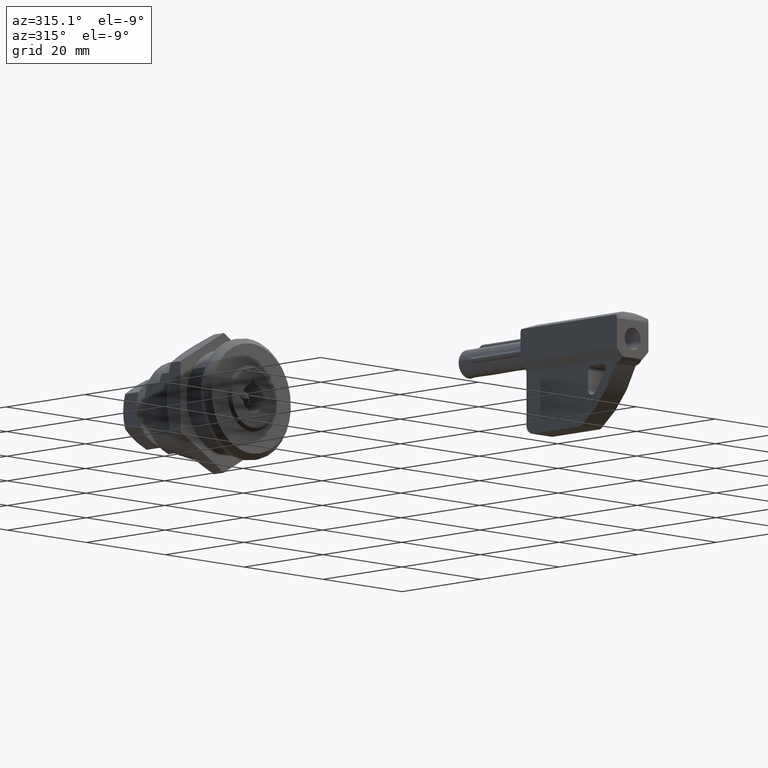
[diagram: clean part render]
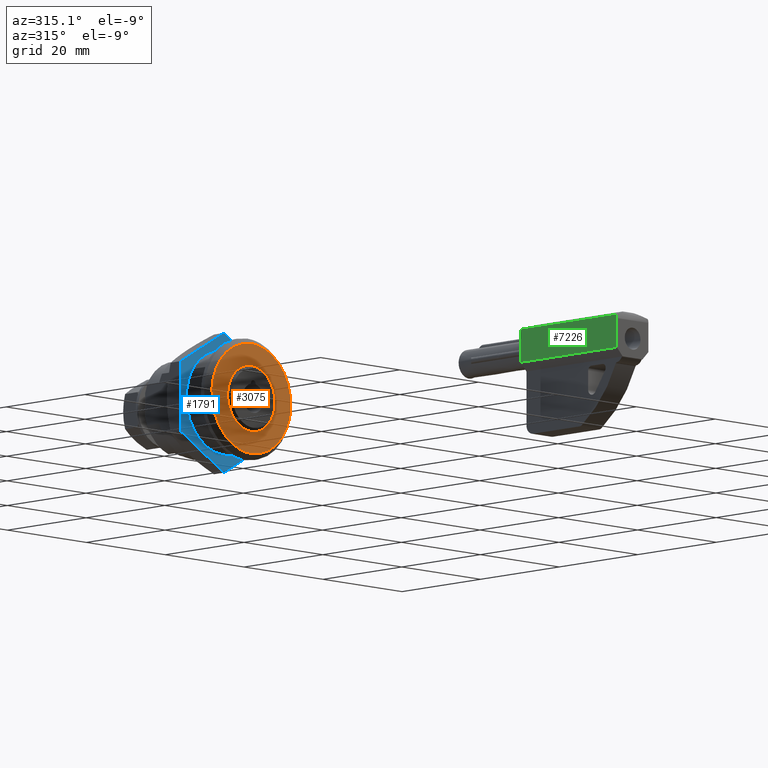
[diagram: same view with three faces highlighted in distinct colors, each labeled with its STEP entity id]
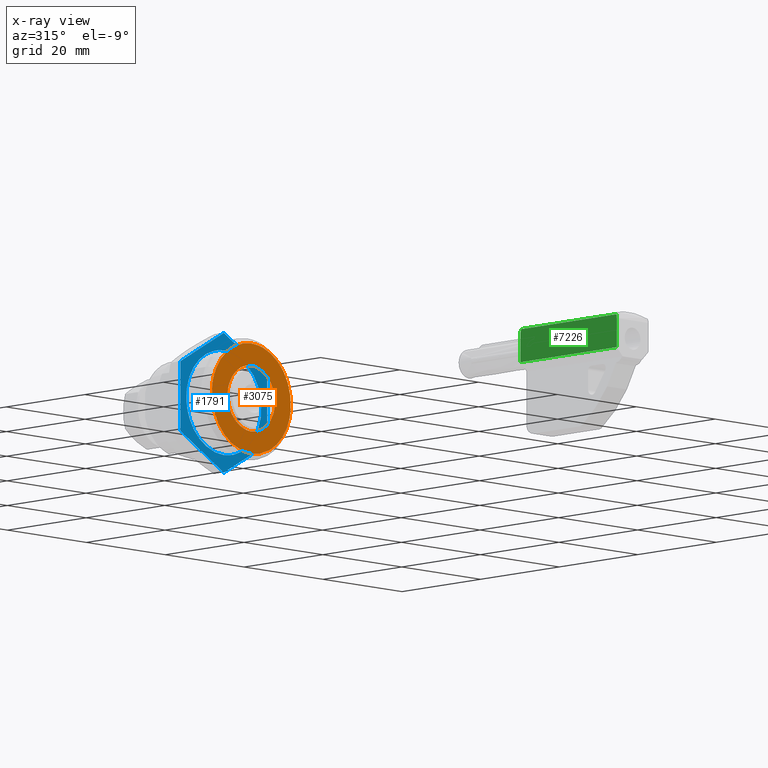
[diagram: x-ray of the same camera — body ghosted, the three highlighted faces saturated]
A machine part, auxiliary view with three faces highlighted in distinct colors.
The next image is the same camera in x-ray (body ghosted, the three faces saturated) — at least one of them is partly hidden behind the body in this view.
Their STEP definitions:

[orange] entity #3075 — the highlighted face is a freeform B-spline surface patch.
#2896=CARTESIAN_POINT('',(5.981504002470306,-1.999999999861463,-0.470754575578729));
#2897=VERTEX_POINT('',#2896);
#2903=CARTESIAN_POINT('',(-1.224606E-016,-2.0,6.000000000000139));
#2904=VERTEX_POINT('',#2903);
#2905=CARTESIAN_POINT('',(5.981504002470306,-1.999999999861463,-0.470754575578729));
#2906=CARTESIAN_POINT('',(6.000000000162861,-1.999999999863980,-0.235740642660914));
#2907=CARTESIAN_POINT('',(6.000000000159605,-1.999999999866701,-1.255163E-011));
#2908=CARTESIAN_POINT('',(6.000000000076740,-1.999999999935970,5.999999999994111));
#2909=CARTESIAN_POINT('',(-1.224606E-016,-2.0,6.000000000000139));
#2917=(BOUNDED_CURVE()B_SPLINE_CURVE(2,(#2905,#2906,#2907,#2908,#2909),.UNSPECIFIED.,.F.,.U.)B_SPLINE_CURVE_WITH_KNOTS((3,2,3),(0.736331300598416,0.750000000000000,1.0),.UNSPECIFIED.)CURVE()GEOMETRIC_REPRESENTATION_ITEM()RATIONAL_B_SPLINE_CURVE((0.969723356100128,0.983986122541106,1.0,0.707106781186548,1.0))REPRESENTATION_ITEM(''));
#2918=EDGE_CURVE('',#2897,#2904,#2917,.T.);
#2920=CARTESIAN_POINT('',(-5.981504002470306,-1.999999999861462,0.470754575578728));
#2921=VERTEX_POINT('',#2920);
#2922=CARTESIAN_POINT('',(-1.224606E-016,-2.0,6.000000000000139));
#2923=CARTESIAN_POINT('',(-5.546342948917396,-1.999999999930731,6.000000000006661));
#2924=CARTESIAN_POINT('',(-5.981504002470306,-1.999999999861462,0.470754575578728));
#2932=(BOUNDED_CURVE()B_SPLINE_CURVE(2,(#2922,#2923,#2924),.UNSPECIFIED.,.F.,.U.)B_SPLINE_CURVE_WITH_KNOTS((3,3),(0.0,0.236331300598416),.UNSPECIFIED.)CURVE()GEOMETRIC_REPRESENTATION_ITEM()RATIONAL_B_SPLINE_CURVE((1.0,0.723120658645441,0.969723356100128))REPRESENTATION_ITEM(''));
#2933=EDGE_CURVE('',#2904,#2921,#2932,.T.);
#2963=CARTESIAN_POINT('',(-1.224606E-016,-2.0,-6.000000000000139));
#2964=VERTEX_POINT('',#2963);
#2965=CARTESIAN_POINT('',(-5.981504002470306,-1.999999999861462,0.470754575578728));
#2966=CARTESIAN_POINT('',(-6.000000000162861,-1.999999999863978,0.235740642660913));
#2967=CARTESIAN_POINT('',(-6.000000000159605,-1.999999999866699,1.255008E-011));
#2968=CARTESIAN_POINT('',(-6.000000000076740,-1.999999999935969,-5.999999999994112));
#2969=CARTESIAN_POINT('',(-1.224606E-016,-2.0,-6.000000000000139));
#2977=(BOUNDED_CURVE()B_SPLINE_CURVE(2,(#2965,#2966,#2967,#2968,#2969),.UNSPECIFIED.,.F.,.U.)B_SPLINE_CURVE_WITH_KNOTS((3,2,3),(0.236331300598416,0.250000000000000,0.500000000000000),.UNSPECIFIED.)CURVE()GEOMETRIC_REPRESENTATION_ITEM()RATIONAL_B_SPLINE_CURVE((0.969723356100128,0.983986122541106,1.0,0.707106781186548,1.0))REPRESENTATION_ITEM(''));
#2978=EDGE_CURVE('',#2921,#2964,#2977,.T.);
#2980=CARTESIAN_POINT('',(-1.224606E-016,-2.0,-6.000000000000139));
#2981=CARTESIAN_POINT('',(5.546342948917396,-1.999999999930733,-6.000000000006661));
#2982=CARTESIAN_POINT('',(5.981504002470306,-1.999999999861463,-0.470754575578729));
#2990=(BOUNDED_CURVE()B_SPLINE_CURVE(2,(#2980,#2981,#2982),.UNSPECIFIED.,.F.,.U.)B_SPLINE_CURVE_WITH_KNOTS((3,3),(0.500000000000000,0.736331300598416),.UNSPECIFIED.)CURVE()GEOMETRIC_REPRESENTATION_ITEM()RATIONAL_B_SPLINE_CURVE((1.0,0.723120658645441,0.969723356100128))REPRESENTATION_ITEM(''));
#2991=EDGE_CURVE('',#2964,#2897,#2990,.T.);
#2998=CARTESIAN_POINT('',(10.995947715013941,-2.000000000000001,10.998999961236120));
#2999=CARTESIAN_POINT('',(10.995947715013941,-2.000000000000001,-10.999000497677921));
#3000=CARTESIAN_POINT('',(-10.995948072641809,-1.999999999999999,10.998999961236120));
#3001=CARTESIAN_POINT('',(-10.995948072641809,-1.999999999999999,-10.999000497677921));
#3002=B_SPLINE_SURFACE_WITH_KNOTS('',1,1,((#2998,#3000),(#2999,#3001)),.UNSPECIFIED.,.F.,.F.,.U.,(2,2),(2,2),(0.0,21.998000458914039),(0.0,21.991895787655750),.UNSPECIFIED.);
#3003=CARTESIAN_POINT('',(-1.224606E-016,-2.0,10.0));
#3004=VERTEX_POINT('',#3003);
#3005=CARTESIAN_POINT('',(-9.969173337337445,-1.999999999984638,0.784590957395488));
#3006=VERTEX_POINT('',#3005);
#3007=CARTESIAN_POINT('',(-1.224606E-016,-2.0,10.0));
#3008=CARTESIAN_POINT('',(-9.243904916481970,-1.999999999992318,10.000000000000602));
#3009=CARTESIAN_POINT('',(-9.969173337337445,-1.999999999984639,0.784590957395488));
#3017=(BOUNDED_CURVE()B_SPLINE_CURVE(2,(#3007,#3008,#3009),.UNSPECIFIED.,.F.,.U.)B_SPLINE_CURVE_WITH_KNOTS((3,3),(0.0,0.236331300630775),.UNSPECIFIED.)CURVE()GEOMETRIC_REPRESENTATION_ITEM()RATIONAL_B_SPLINE_CURVE((1.0,0.723120658607530,0.969723356167659))REPRESENTATION_ITEM(''));
#3018=EDGE_CURVE('',#3004,#3006,#3017,.T.);
#3019=ORIENTED_EDGE('',*,*,#3018,.T.);
#3020=CARTESIAN_POINT('',(-1.224606E-016,-2.0,-10.0));
#3021=VERTEX_POINT('',#3020);
#3022=CARTESIAN_POINT('',(-9.969173337337445,-1.999999999984639,0.784590957395488));
#3023=CARTESIAN_POINT('',(-10.000000000015005,-1.999999999984917,0.392901070136064));
#3024=CARTESIAN_POINT('',(-10.000000000014699,-1.999999999985219,1.157343E-012));
#3025=CARTESIAN_POINT('',(-10.000000000007063,-1.999999999992899,-9.999999999999444));
#3026=CARTESIAN_POINT('',(-1.224606E-016,-2.0,-10.0));
#3034=(BOUNDED_CURVE()B_SPLINE_CURVE(2,(#3022,#3023,#3024,#3025,#3026),.UNSPECIFIED.,.F.,.U.)B_SPLINE_CURVE_WITH_KNOTS((3,2,3),(0.236331300630775,0.250000000000000,0.500000000000000),.UNSPECIFIED.)CURVE()GEOMETRIC_REPRESENTATION_ITEM()RATIONAL_B_SPLINE_CURVE((0.969723356167659,0.983986122579017,1.0,0.707106781186548,1.0))REPRESENTATION_ITEM(''));
#3035=EDGE_CURVE('',#3006,#3021,#3034,.T.);
#3036=ORIENTED_EDGE('',*,*,#3035,.T.);
#3037=CARTESIAN_POINT('',(9.969173337337448,-1.999999999984639,-0.784590957395489));
#3038=VERTEX_POINT('',#3037);
#3039=CARTESIAN_POINT('',(-1.224606E-016,-2.0,-10.0));
#3040=CARTESIAN_POINT('',(9.243904916481970,-1.999999999992320,-10.000000000000600));
#3041=CARTESIAN_POINT('',(9.969173337337448,-1.999999999984640,-0.784590957395489));
#3049=(BOUNDED_CURVE()B_SPLINE_CURVE(2,(#3039,#3040,#3041),.UNSPECIFIED.,.F.,.U.)B_SPLINE_CURVE_WITH_KNOTS((3,3),(0.500000000000000,0.736331300630775),.UNSPECIFIED.)CURVE()GEOMETRIC_REPRESENTATION_ITEM()RATIONAL_B_SPLINE_CURVE((1.0,0.723120658607530,0.969723356167659))REPRESENTATION_ITEM(''));
#3050=EDGE_CURVE('',#3021,#3038,#3049,.T.);
#3051=ORIENTED_EDGE('',*,*,#3050,.T.);
#3052=CARTESIAN_POINT('',(9.969173337337448,-1.999999999984640,-0.784590957395489));
#3053=CARTESIAN_POINT('',(10.000000000015007,-1.999999999984918,-0.392901070136064));
#3054=CARTESIAN_POINT('',(10.000000000014710,-1.999999999985220,-1.156168E-012));
#3055=CARTESIAN_POINT('',(10.000000000007066,-1.999999999992900,9.999999999999444));
#3056=CARTESIAN_POINT('',(-1.224606E-016,-2.0,10.0));
#3064=(BOUNDED_CURVE()B_SPLINE_CURVE(2,(#3052,#3053,#3054,#3055,#3056),.UNSPECIFIED.,.F.,.U.)B_SPLINE_CURVE_WITH_KNOTS((3,2,3),(0.736331300630775,0.750000000000000,1.0),.UNSPECIFIED.)CURVE()GEOMETRIC_REPRESENTATION_ITEM()RATIONAL_B_SPLINE_CURVE((0.969723356167659,0.983986122579017,1.0,0.707106781186548,1.0))REPRESENTATION_ITEM(''));
#3065=EDGE_CURVE('',#3038,#3004,#3064,.T.);
#3066=ORIENTED_EDGE('',*,*,#3065,.T.);
#3067=EDGE_LOOP('',(#3019,#3036,#3051,#3066));
#3068=FACE_OUTER_BOUND('',#3067,.T.);
#3069=ORIENTED_EDGE('',*,*,#2991,.F.);
#3070=ORIENTED_EDGE('',*,*,#2978,.F.);
#3071=ORIENTED_EDGE('',*,*,#2933,.F.);
#3072=ORIENTED_EDGE('',*,*,#2918,.F.);
#3073=EDGE_LOOP('',(#3069,#3070,#3071,#3072));
#3074=FACE_BOUND('',#3073,.T.);
#3075=ADVANCED_FACE('',(#3068,#3074),#3002,.F.);

[blue] entity #1791 — the highlighted face is a freeform B-spline surface patch.
#1632=CARTESIAN_POINT('',(3.061516E-016,5.0,9.500000000000128));
#1633=VERTEX_POINT('',#1632);
#1634=CARTESIAN_POINT('',(9.470714670454422,5.0,0.745361409545433));
#1635=VERTEX_POINT('',#1634);
#1636=CARTESIAN_POINT('',(3.061516E-016,5.0,9.500000000000128));
#1637=CARTESIAN_POINT('',(8.781709670631329,4.999999999999999,9.500000000000128));
#1638=CARTESIAN_POINT('',(9.470714670454422,4.999999999999993,0.745361409545433));
#1646=(BOUNDED_CURVE()B_SPLINE_CURVE(2,(#1636,#1637,#1638),.UNSPECIFIED.,.F.,.U.)B_SPLINE_CURVE_WITH_KNOTS((3,3),(0.0,0.236331300630400),.UNSPECIFIED.)CURVE()GEOMETRIC_REPRESENTATION_ITEM()RATIONAL_B_SPLINE_CURVE((1.0,0.723120658607970,0.969723356166875))REPRESENTATION_ITEM(''));
#1647=EDGE_CURVE('',#1633,#1635,#1646,.T.);
#1649=CARTESIAN_POINT('',(-9.470714670454422,5.0,-0.745361409545178));
#1650=VERTEX_POINT('',#1649);
#1651=CARTESIAN_POINT('',(-9.470714670454422,4.999999999999993,-0.745361409545177));
#1652=CARTESIAN_POINT('',(-9.500000000000000,5.000000000000001,-0.373256016638426));
#1653=CARTESIAN_POINT('',(-9.500000000000000,5.0,1.278977E-013));
#1654=CARTESIAN_POINT('',(-9.500000000000000,5.000000000000001,9.500000000000128));
#1655=CARTESIAN_POINT('',(3.061516E-016,5.0,9.500000000000128));
#1663=(BOUNDED_CURVE()B_SPLINE_CURVE(2,(#1651,#1652,#1653,#1654,#1655),.UNSPECIFIED.,.F.,.U.)B_SPLINE_CURVE_WITH_KNOTS((3,2,3),(0.736331300630400,0.750000000000000,1.0),.UNSPECIFIED.)CURVE()GEOMETRIC_REPRESENTATION_ITEM()RATIONAL_B_SPLINE_CURVE((0.969723356166875,0.983986122578578,1.0,0.707106781186548,1.0))REPRESENTATION_ITEM(''));
#1664=EDGE_CURVE('',#1650,#1633,#1663,.T.);
#1699=CARTESIAN_POINT('',(3.061516E-016,5.0,-9.499999999999872));
#1700=VERTEX_POINT('',#1699);
#1701=CARTESIAN_POINT('',(9.470714670454422,4.999999999999993,0.745361409545433));
#1702=CARTESIAN_POINT('',(9.500000000000000,5.000000000000001,0.373256016638682));
#1703=CARTESIAN_POINT('',(9.500000000000000,5.0,1.278977E-013));
#1704=CARTESIAN_POINT('',(9.500000000000000,5.000000000000001,-9.499999999999872));
#1705=CARTESIAN_POINT('',(3.061516E-016,5.0,-9.499999999999872));
#1713=(BOUNDED_CURVE()B_SPLINE_CURVE(2,(#1701,#1702,#1703,#1704,#1705),.UNSPECIFIED.,.F.,.U.)B_SPLINE_CURVE_WITH_KNOTS((3,2,3),(0.236331300630400,0.250000000000000,0.500000000000000),.UNSPECIFIED.)CURVE()GEOMETRIC_REPRESENTATION_ITEM()RATIONAL_B_SPLINE_CURVE((0.969723356166875,0.983986122578578,1.0,0.707106781186548,1.0))REPRESENTATION_ITEM(''));
#1714=EDGE_CURVE('',#1635,#1700,#1713,.T.);
#1720=CARTESIAN_POINT('',(3.061516E-016,5.0,-9.499999999999872));
#1721=CARTESIAN_POINT('',(-8.781709670631329,4.999999999999999,-9.499999999999874));
#1722=CARTESIAN_POINT('',(-9.470714670454422,4.999999999999993,-0.745361409545177));
#1730=(BOUNDED_CURVE()B_SPLINE_CURVE(2,(#1720,#1721,#1722),.UNSPECIFIED.,.F.,.U.)B_SPLINE_CURVE_WITH_KNOTS((3,3),(0.500000000000000,0.736331300630400),.UNSPECIFIED.)CURVE()GEOMETRIC_REPRESENTATION_ITEM()RATIONAL_B_SPLINE_CURVE((1.0,0.723120658607970,0.969723356166875))REPRESENTATION_ITEM(''));
#1731=EDGE_CURVE('',#1700,#1650,#1730,.T.);
#1736=CARTESIAN_POINT('',(12.098899957359730,5.0,13.970606294564760));
#1737=CARTESIAN_POINT('',(-12.098900547445711,5.0,13.970606294564760));
#1738=CARTESIAN_POINT('',(12.098899957359730,5.0,-13.970606975926630));
#1739=CARTESIAN_POINT('',(-12.098900547445711,5.0,-13.970606975926630));
#1740=B_SPLINE_SURFACE_WITH_KNOTS('',1,1,((#1736,#1738),(#1737,#1739)),.UNSPECIFIED.,.F.,.F.,.U.,(2,2),(2,2),(0.0,24.197800504805439),(0.0,27.941213270491389),.UNSPECIFIED.);
#1741=CARTESIAN_POINT('',(-11.0,5.0,6.350852961075090));
#1742=VERTEX_POINT('',#1741);
#1743=CARTESIAN_POINT('',(-1.000414E-011,5.0,12.701705922176600));
#1744=VERTEX_POINT('',#1743);
#1745=CARTESIAN_POINT('',(-11.0,5.0,6.350852961075090));
#1746=CARTESIAN_POINT('',(-1.000414E-011,5.0,12.701705922176600));
#1747=QUASI_UNIFORM_CURVE('',1,(#1745,#1746),.UNSPECIFIED.,.F.,.U.);
#1748=EDGE_CURVE('',#1742,#1744,#1747,.T.);
#1749=ORIENTED_EDGE('',*,*,#1748,.F.);
#1750=CARTESIAN_POINT('',(-10.999999999989940,5.0,-6.350852961091380));
#1751=VERTEX_POINT('',#1750);
#1752=CARTESIAN_POINT('',(-10.999999999989940,5.0,-6.350852961091380));
#1753=CARTESIAN_POINT('',(-11.0,5.0,6.350852961075090));
#1754=QUASI_UNIFORM_CURVE('',1,(#1752,#1753),.UNSPECIFIED.,.F.,.U.);
#1755=EDGE_CURVE('',#1751,#1742,#1754,.T.);
#1756=ORIENTED_EDGE('',*,*,#1755,.F.);
#1757=CARTESIAN_POINT('',(1.000475E-011,5.0,-12.701705922165861));
#1758=VERTEX_POINT('',#1757);
#1759=CARTESIAN_POINT('',(1.000475E-011,5.0,-12.701705922165861));
#1760=CARTESIAN_POINT('',(-10.999999999989940,5.0,-6.350852961091380));
#1761=QUASI_UNIFORM_CURVE('',1,(#1759,#1760),.UNSPECIFIED.,.F.,.U.);
#1762=EDGE_CURVE('',#1758,#1751,#1761,.T.);
#1763=ORIENTED_EDGE('',*,*,#1762,.F.);
#1764=CARTESIAN_POINT('',(11.0,5.0,-6.350852961074381));
#1765=VERTEX_POINT('',#1764);
#1766=CARTESIAN_POINT('',(11.0,5.0,-6.350852961074381));
#1767=CARTESIAN_POINT('',(1.000475E-011,5.0,-12.701705922165861));
#1768=QUASI_UNIFORM_CURVE('',1,(#1766,#1767),.UNSPECIFIED.,.F.,.U.);
#1769=EDGE_CURVE('',#1765,#1758,#1768,.T.);
#1770=ORIENTED_EDGE('',*,*,#1769,.F.);
#1771=CARTESIAN_POINT('',(10.999999999990040,5.0,6.350852961092090));
#1772=VERTEX_POINT('',#1771);
#1773=CARTESIAN_POINT('',(10.999999999990040,5.0,6.350852961092090));
#1774=CARTESIAN_POINT('',(11.0,5.0,-6.350852961074381));
#1775=QUASI_UNIFORM_CURVE('',1,(#1773,#1774),.UNSPECIFIED.,.F.,.U.);
#1776=EDGE_CURVE('',#1772,#1765,#1775,.T.);
#1777=ORIENTED_EDGE('',*,*,#1776,.F.);
#1778=CARTESIAN_POINT('',(-1.000414E-011,5.0,12.701705922176600));
#1779=CARTESIAN_POINT('',(10.999999999990040,5.0,6.350852961092090));
#1780=QUASI_UNIFORM_CURVE('',1,(#1778,#1779),.UNSPECIFIED.,.F.,.U.);
#1781=EDGE_CURVE('',#1744,#1772,#1780,.T.);
#1782=ORIENTED_EDGE('',*,*,#1781,.F.);
#1783=EDGE_LOOP('',(#1749,#1756,#1763,#1770,#1777,#1782));
#1784=FACE_OUTER_BOUND('',#1783,.T.);
#1785=ORIENTED_EDGE('',*,*,#1731,.T.);
#1786=ORIENTED_EDGE('',*,*,#1664,.T.);
#1787=ORIENTED_EDGE('',*,*,#1647,.T.);
#1788=ORIENTED_EDGE('',*,*,#1714,.T.);
#1789=EDGE_LOOP('',(#1785,#1786,#1787,#1788));
#1790=FACE_BOUND('',#1789,.T.);
#1791=ADVANCED_FACE('',(#1784,#1790),#1740,.T.);

[green] entity #7226 — the highlighted face is a freeform B-spline surface patch.
#6180=CARTESIAN_POINT('',(-4.000000000000006,-99.0,3.300000000000000));
#6181=VERTEX_POINT('',#6180);
#6187=CARTESIAN_POINT('',(-4.000000000000006,-99.0,-1.999999999999970));
#6188=VERTEX_POINT('',#6187);
#6189=CARTESIAN_POINT('',(-4.000000000000006,-99.0,-1.999999999999970));
#6190=CARTESIAN_POINT('',(-4.000000000000006,-99.0,3.300000000000000));
#6191=QUASI_UNIFORM_CURVE('',1,(#6189,#6190),.UNSPECIFIED.,.F.,.U.);
#6192=EDGE_CURVE('',#6188,#6181,#6191,.T.);
#6244=CARTESIAN_POINT('',(-4.000000000000006,-98.849193338482991,4.0));
#6245=VERTEX_POINT('',#6244);
#6259=CARTESIAN_POINT('',(-4.000000000000006,-99.0,3.300000000000000));
#6260=CARTESIAN_POINT('',(-4.000000000000006,-99.0,3.666244749398503));
#6261=CARTESIAN_POINT('',(-4.000000000000006,-98.849193338482962,3.999999999999989));
#6269=(BOUNDED_CURVE()B_SPLINE_CURVE(2,(#6259,#6260,#6261),.UNSPECIFIED.,.F.,.U.)CURVE()GEOMETRIC_REPRESENTATION_ITEM()QUASI_UNIFORM_CURVE()RATIONAL_B_SPLINE_CURVE((1.0,0.977571020209691,1.0))REPRESENTATION_ITEM(''));
#6270=EDGE_CURVE('',#6181,#6245,#6269,.T.);
#6320=CARTESIAN_POINT('',(-4.000000000000005,-74.500000000000000,3.300000000000000));
#6321=VERTEX_POINT('',#6320);
#6327=CARTESIAN_POINT('',(-4.000000000000005,-74.650806661516995,4.0));
#6328=VERTEX_POINT('',#6327);
#6329=CARTESIAN_POINT('',(-4.000000000000005,-74.650806661517038,3.999999999999985));
#6330=CARTESIAN_POINT('',(-4.000000000000006,-74.500000000000014,3.666244749398500));
#6331=CARTESIAN_POINT('',(-4.000000000000005,-74.500000000000014,3.300000000000000));
#6339=(BOUNDED_CURVE()B_SPLINE_CURVE(2,(#6329,#6330,#6331),.UNSPECIFIED.,.F.,.U.)CURVE()GEOMETRIC_REPRESENTATION_ITEM()QUASI_UNIFORM_CURVE()RATIONAL_B_SPLINE_CURVE((1.0,0.977571020209691,1.0))REPRESENTATION_ITEM(''));
#6340=EDGE_CURVE('',#6328,#6321,#6339,.T.);
#6395=CARTESIAN_POINT('',(-4.000000000000006,-98.849193338482991,4.0));
#6396=CARTESIAN_POINT('',(-4.000000000000005,-74.650806661516995,4.0));
#6397=QUASI_UNIFORM_CURVE('',1,(#6395,#6396),.UNSPECIFIED.,.F.,.U.);
#6398=EDGE_CURVE('',#6245,#6328,#6397,.T.);
#6440=CARTESIAN_POINT('',(-4.000000000000005,-74.500000000000000,-1.999999999999970));
#6441=VERTEX_POINT('',#6440);
#6454=CARTESIAN_POINT('',(-4.000000000000006,-99.0,-1.999999999999970));
#6455=CARTESIAN_POINT('',(-4.000000000000005,-74.500000000000000,-1.999999999999970));
#6456=QUASI_UNIFORM_CURVE('',1,(#6454,#6455),.UNSPECIFIED.,.F.,.U.);
#6457=EDGE_CURVE('',#6188,#6441,#6456,.T.);
#7209=CARTESIAN_POINT('',(-4.000000000000006,-100.223774952514300,-2.299699988370804));
#7210=CARTESIAN_POINT('',(-4.000000000000004,-73.276224390344538,-2.299699988370804));
#7211=CARTESIAN_POINT('',(-4.000000000000006,-100.223774952514300,4.299700149303374));
#7212=CARTESIAN_POINT('',(-4.000000000000004,-73.276224390344538,4.299700149303374));
#7213=B_SPLINE_SURFACE_WITH_KNOTS('',1,1,((#7209,#7211),(#7210,#7212)),.UNSPECIFIED.,.F.,.F.,.U.,(2,2),(2,2),(0.0,26.947550562169710),(0.0,6.599400137674178),.UNSPECIFIED.);
#7214=ORIENTED_EDGE('',*,*,#6398,.T.);
#7215=ORIENTED_EDGE('',*,*,#6340,.T.);
#7216=CARTESIAN_POINT('',(-4.000000000000005,-74.500000000000000,3.300000000000000));
#7217=CARTESIAN_POINT('',(-4.000000000000005,-74.500000000000000,-1.999999999999970));
#7218=QUASI_UNIFORM_CURVE('',1,(#7216,#7217),.UNSPECIFIED.,.F.,.U.);
#7219=EDGE_CURVE('',#6321,#6441,#7218,.T.);
#7220=ORIENTED_EDGE('',*,*,#7219,.T.);
#7221=ORIENTED_EDGE('',*,*,#6457,.F.);
#7222=ORIENTED_EDGE('',*,*,#6192,.T.);
#7223=ORIENTED_EDGE('',*,*,#6270,.T.);
#7224=EDGE_LOOP('',(#7214,#7215,#7220,#7221,#7222,#7223));
#7225=FACE_OUTER_BOUND('',#7224,.T.);
#7226=ADVANCED_FACE('',(#7225),#7213,.F.);